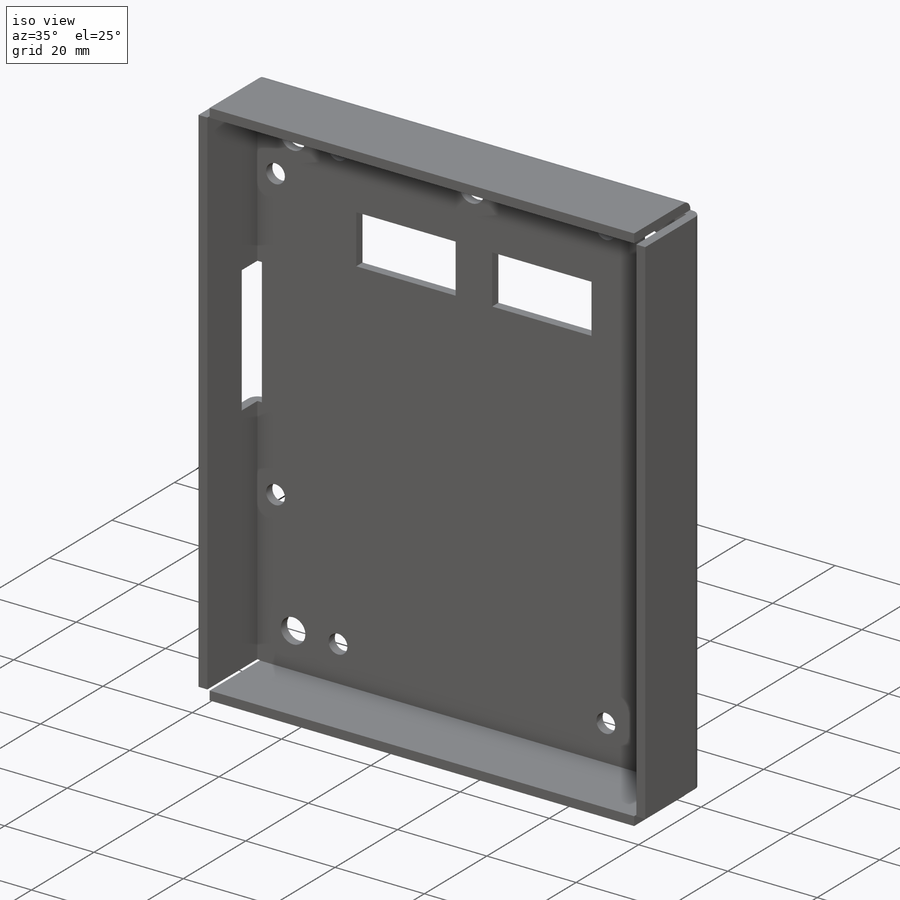
[diagram: iso view]
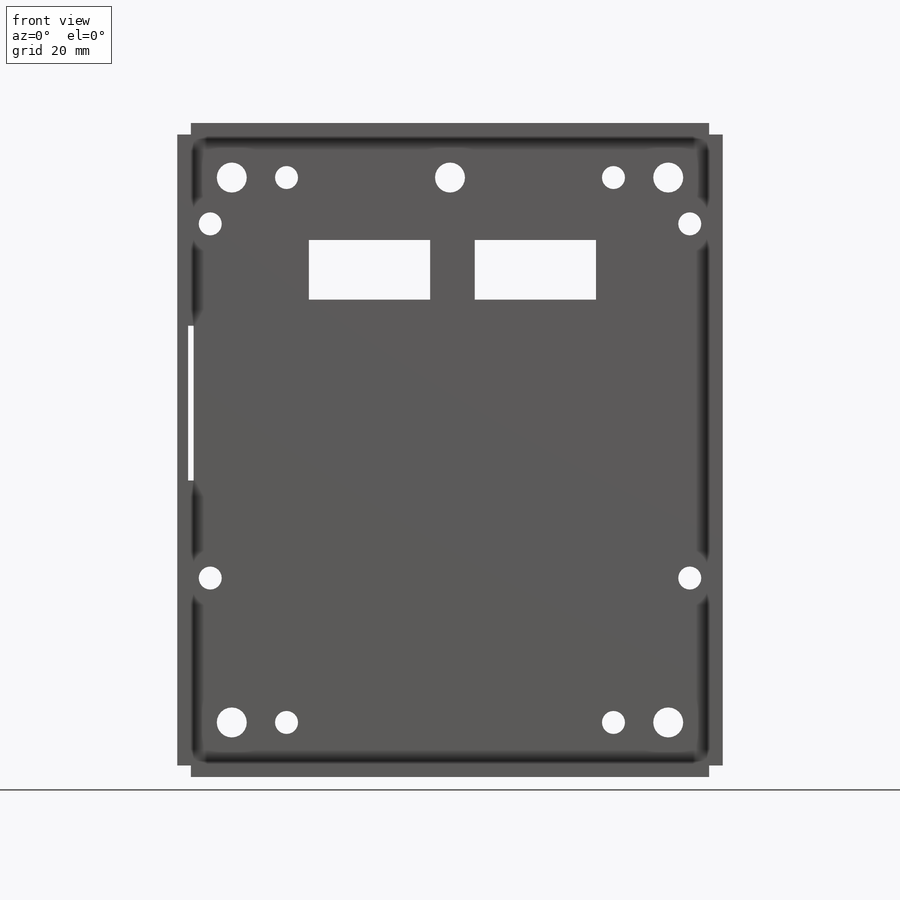
[diagram: front view]
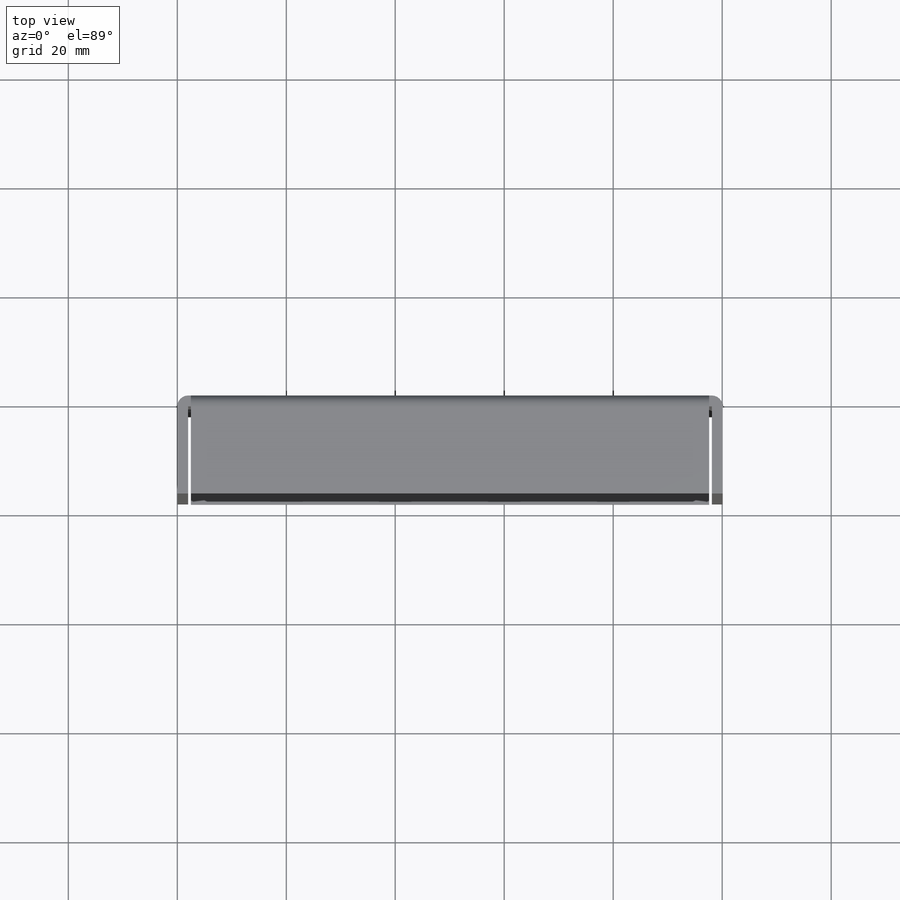
[diagram: top view]
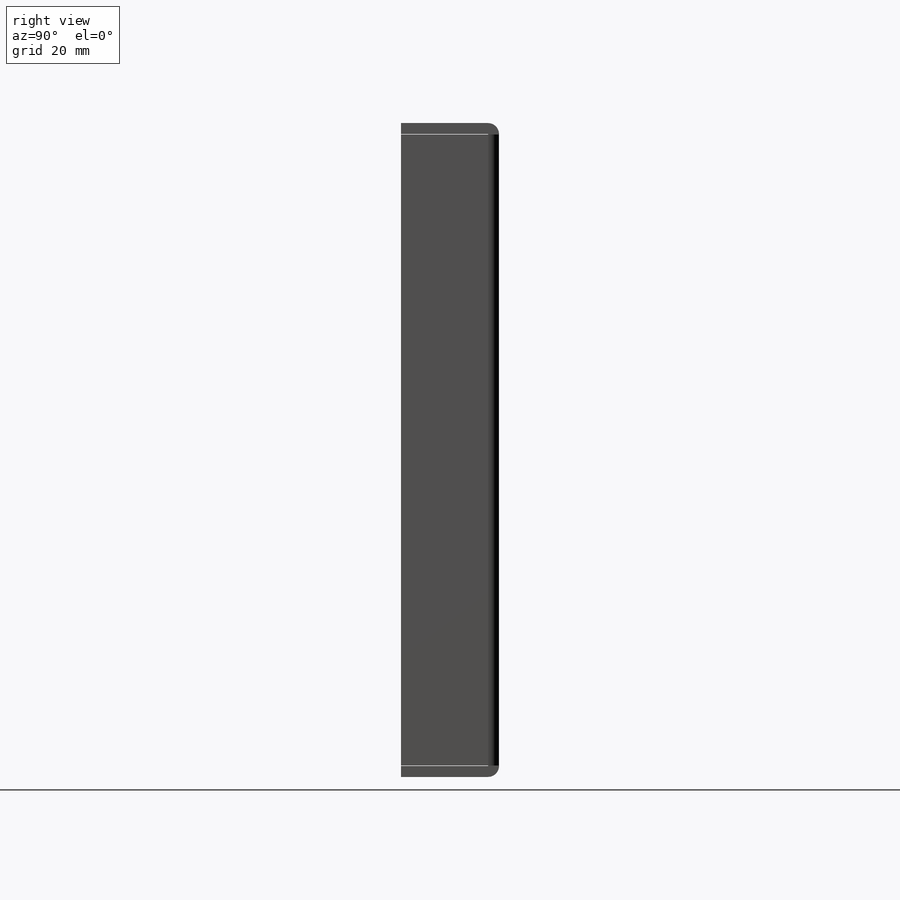
[diagram: right view]
SOLIDWORKS PART (.sldprt)
format: sldprt  version: not decoded by parser v0  size: 337,920 bytes
history: native  units: mm
features: sketch x5, extrude x3, cut_extrude x2, material x1, plane x1, mirror x1, fillet x1 (+11 scaffold rows collapsed)
feature tree (25):
  scaffold x11  (default folders/planes/origin — collapsed)
  material  "Material <not specified>"
  sketch  "Sketch1"  dims[c1.D7=4.22mm c1.D8=5.5mm c1.D9=10.0mm c1.D15=4.22mm c1.D1=120.0mm c1.D2=10.0mm c1.D3=10.0mm c1.D4=10.0mm c1.D5=~131.404717mm c1.D6=10.0mm c2.D5=3.5mm c2.D10=1.0mm c2.D11=1.0mm c2.D12=1.0mm c2.D13=1.0mm c2.D14=1.0mm c2.D16=100.0mm c2.D17=60.0mm]
  extrude  "Boss-Extrude1"  Depth=2mm
  sketch  "Sketch2"  dims[c1.D1=1.0mm c1.D6=1.0mm c1.D2=2.1mm c1.D3=2.0mm c1.D4=2.0mm c1.D5=10.0mm c1.D7=2.1mm c2.D1=2.0mm]
  extrude  "Boss-Extrude2"  Depth=16mm
  plane  "Plane1"  Offset=50.05mm
  mirror  "Mirror1"
  sketch  "Sketch4"  dims[D1=0.5mm D2=2.0mm D3=0.5mm]
  extrude  "Boss-Extrude3"  [1 undecoded]
  sketch  "Sketch5"
  cut_extrude  "Cut-Extrude1"  Depth=2mm
  sketch  "Sketch6"  dims[D1=1.0mm D2=1.0mm D3=1.0mm D4=1.0mm]
  cut_extrude  "Cut-Extrude2"  Depth=3mm
  fillet  "Fillet2"  Radius=2mm
decode coverage: 9 of 12 modeling features carry decoded parameters
note: ~ marks probable driven/reference dimensions
note: 1 parameter value undecoded
note: suppression state not decoded; provenance and decode notes live in map.json
